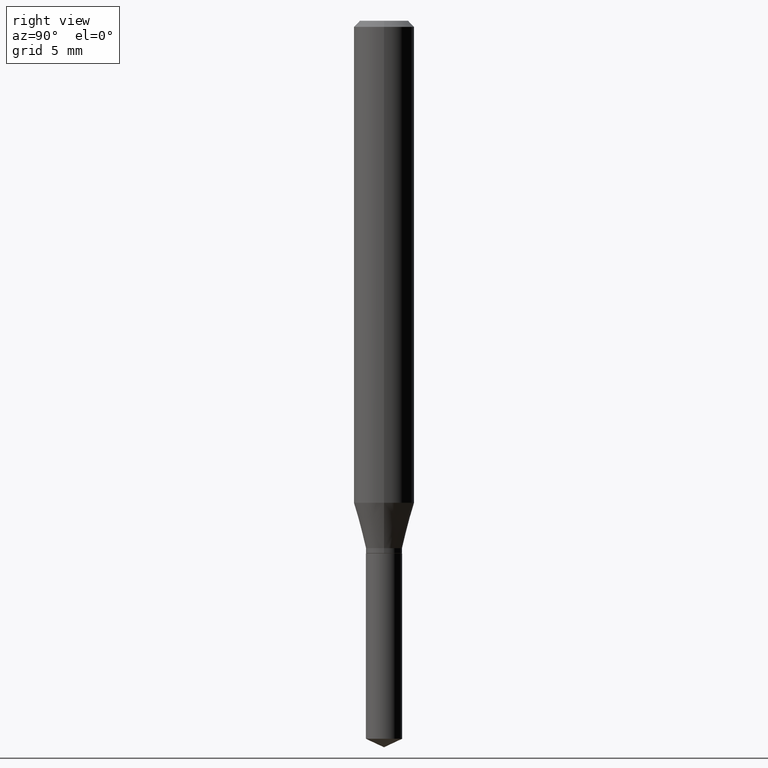
[diagram: clean part render]
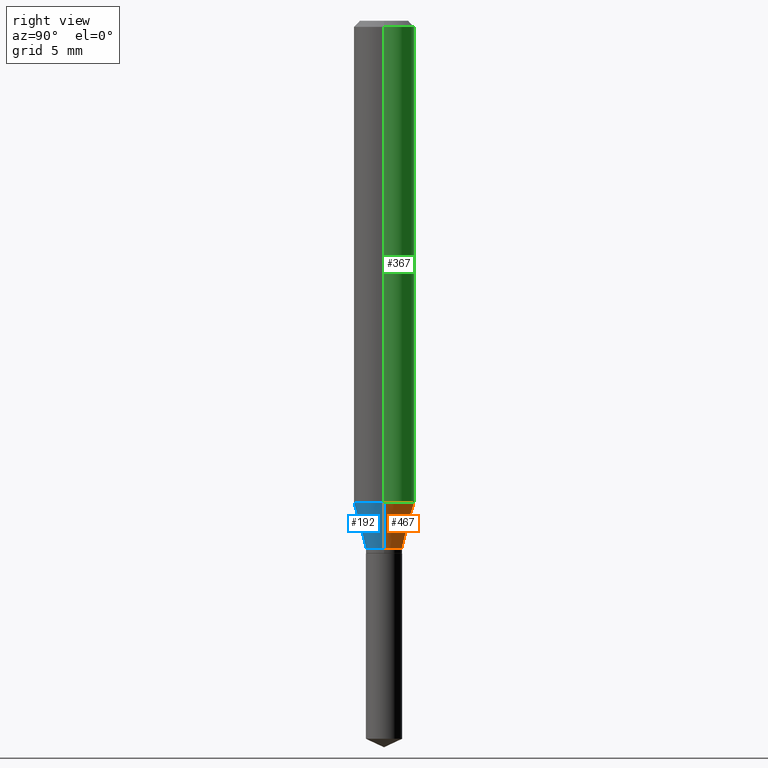
[diagram: same view with three faces highlighted in distinct colors, each labeled with its STEP entity id]
A machine part, right view with three faces highlighted in distinct colors.
Their STEP definitions:

[orange] entity #467 — the highlighted conical surface has half-angle 15 deg.
#12 = EDGE_CURVE ( 'NONE', #60, #82, #479, .T. ) ;
#14 = DIRECTION ( 'NONE',  ( 1.000000000000000000, -6.982962677686264344E-15, 0.000000000000000000 ) ) ;
#32 = ORIENTED_EDGE ( 'NONE', *, *, #204, .T. ) ;
#35 = CARTESIAN_POINT ( 'NONE',  ( 0.03740000000000000269, -4.062687685877884033E-15, -1.088800000000000212 ) ) ;
#40 = ORIENTED_EDGE ( 'NONE', *, *, #12, .F. ) ;
#42 = DIRECTION ( 'NONE',  ( -2.445468806185136597E-29, 3.491481338843145583E-15, 1.000000000000000000 ) ) ;
#54 = DIRECTION ( 'NONE',  ( -2.445468806185136597E-29, 3.491481338843145583E-15, 1.000000000000000000 ) ) ;
#59 = AXIS2_PLACEMENT_3D ( 'NONE', #279, #54, #14 ) ;
#60 = VERTEX_POINT ( 'NONE', #120 ) ;
#68 = ORIENTED_EDGE ( 'NONE', *, *, #319, .T. ) ;
#82 = VERTEX_POINT ( 'NONE', #396 ) ;
#120 = CARTESIAN_POINT ( 'NONE',  ( 0.06250000000000012490, -3.910897366756753978E-15, -0.9951255247300211382 ) ) ;
#122 = AXIS2_PLACEMENT_3D ( 'NONE', #345, #490, #149 ) ;
#143 = AXIS2_PLACEMENT_3D ( 'NONE', #354, #42, #157 ) ;
#147 = FACE_OUTER_BOUND ( 'NONE', #377, .T. ) ;
#149 = DIRECTION ( 'NONE',  ( 1.000000000000000000, -6.982962677686261977E-15, 0.000000000000000000 ) ) ;
#157 = DIRECTION ( 'NONE',  ( 1.000000000000000000, -6.982962677686261977E-15, 0.000000000000000000 ) ) ;
#166 = VERTEX_POINT ( 'NONE', #372 ) ;
#171 = CARTESIAN_POINT ( 'NONE',  ( -0.03740000000000000269, -3.535781898558140243E-15, -1.088800000000000212 ) ) ;
#177 = DIRECTION ( 'NONE',  ( 0.2588190451025213501, 1.565188264969621968E-15, 0.9659258262890682012 ) ) ;
#178 = CONICAL_SURFACE ( 'NONE', #143, 0.03740000000000000269, 0.2617993877991500740 ) ;
#204 = EDGE_CURVE ( 'NONE', #331, #82, #369, .T. ) ;
#246 = CARTESIAN_POINT ( 'NONE',  ( -0.03740000000000000269, -3.554461323720950725E-15, -1.088800000000000212 ) ) ;
#279 = CARTESIAN_POINT ( 'NONE',  ( 2.433548428965882427E-29, -3.474462199401361914E-15, -0.9951255247300211382 ) ) ;
#312 = EDGE_CURVE ( 'NONE', #166, #60, #488, .T. ) ;
#319 = EDGE_CURVE ( 'NONE', #166, #331, #392, .T. ) ;
#331 = VERTEX_POINT ( 'NONE', #246 ) ;
#345 = CARTESIAN_POINT ( 'NONE',  ( 2.662626436174376772E-29, -3.801524881732417633E-15, -1.088800000000000212 ) ) ;
#354 = CARTESIAN_POINT ( 'NONE',  ( 2.662626436174376772E-29, -3.801524881732417633E-15, -1.088800000000000212 ) ) ;
#359 = VECTOR ( 'NONE', #380, 39.37007874015747433 ) ;
#369 = LINE ( 'NONE', #171, #359 ) ;
#372 = CARTESIAN_POINT ( 'NONE',  ( 0.03740000000000000269, -4.062687685877884033E-15, -1.088800000000000212 ) ) ;
#377 = EDGE_LOOP ( 'NONE', ( #68, #32, #40, #379 ) ) ;
#379 = ORIENTED_EDGE ( 'NONE', *, *, #312, .F. ) ;
#380 = DIRECTION ( 'NONE',  ( -0.2588190451025213501, 5.211531920934551042E-15, 0.9659258262890682012 ) ) ;
#392 = CIRCLE ( 'NONE', #122, 0.03740000000000000269 ) ;
#396 = CARTESIAN_POINT ( 'NONE',  ( -0.06250000000000012490, -3.030372989551298509E-15, -0.9951255247300211382 ) ) ;
#416 = VECTOR ( 'NONE', #177, 39.37007874015747433 ) ;
#467 = ADVANCED_FACE ( 'NONE', ( #147 ), #178, .T. ) ;
#479 = CIRCLE ( 'NONE', #59, 0.06250000000000012490 ) ;
#488 = LINE ( 'NONE', #35, #416 ) ;
#490 = DIRECTION ( 'NONE',  ( -2.445468806185136597E-29, 3.491481338843145583E-15, 1.000000000000000000 ) ) ;

[blue] entity #192 — the highlighted conical surface has half-angle 15 deg.
#31 = FACE_OUTER_BOUND ( 'NONE', #215, .T. ) ;
#35 = CARTESIAN_POINT ( 'NONE',  ( 0.03740000000000000269, -4.062687685877884033E-15, -1.088800000000000212 ) ) ;
#60 = VERTEX_POINT ( 'NONE', #120 ) ;
#82 = VERTEX_POINT ( 'NONE', #396 ) ;
#100 = DIRECTION ( 'NONE',  ( -2.445468806185136597E-29, 3.491481338843145583E-15, 1.000000000000000000 ) ) ;
#109 = CARTESIAN_POINT ( 'NONE',  ( 2.662626436174376772E-29, -3.801524881732417633E-15, -1.088800000000000212 ) ) ;
#117 = CARTESIAN_POINT ( 'NONE',  ( 2.662626436174376772E-29, -3.801524881732417633E-15, -1.088800000000000212 ) ) ;
#120 = CARTESIAN_POINT ( 'NONE',  ( 0.06250000000000012490, -3.910897366756753978E-15, -0.9951255247300211382 ) ) ;
#146 = EDGE_CURVE ( 'NONE', #82, #60, #321, .T. ) ;
#166 = VERTEX_POINT ( 'NONE', #372 ) ;
#171 = CARTESIAN_POINT ( 'NONE',  ( -0.03740000000000000269, -3.535781898558140243E-15, -1.088800000000000212 ) ) ;
#177 = DIRECTION ( 'NONE',  ( 0.2588190451025213501, 1.565188264969621968E-15, 0.9659258262890682012 ) ) ;
#192 = ADVANCED_FACE ( 'NONE', ( #31 ), #409, .T. ) ;
#204 = EDGE_CURVE ( 'NONE', #331, #82, #369, .T. ) ;
#206 = ORIENTED_EDGE ( 'NONE', *, *, #312, .T. ) ;
#215 = EDGE_LOOP ( 'NONE', ( #370, #338, #206, #375 ) ) ;
#218 = DIRECTION ( 'NONE',  ( -2.445468806185136597E-29, 3.491481338843145583E-15, 1.000000000000000000 ) ) ;
#246 = CARTESIAN_POINT ( 'NONE',  ( -0.03740000000000000269, -3.554461323720950725E-15, -1.088800000000000212 ) ) ;
#264 = DIRECTION ( 'NONE',  ( 1.000000000000000000, -6.982962677686261977E-15, 0.000000000000000000 ) ) ;
#276 = DIRECTION ( 'NONE',  ( -2.445468806185136597E-29, 3.491481338843145583E-15, 1.000000000000000000 ) ) ;
#283 = EDGE_CURVE ( 'NONE', #331, #166, #435, .T. ) ;
#296 = AXIS2_PLACEMENT_3D ( 'NONE', #109, #100, #264 ) ;
#312 = EDGE_CURVE ( 'NONE', #166, #60, #488, .T. ) ;
#321 = CIRCLE ( 'NONE', #451, 0.06250000000000012490 ) ;
#331 = VERTEX_POINT ( 'NONE', #246 ) ;
#338 = ORIENTED_EDGE ( 'NONE', *, *, #283, .T. ) ;
#359 = VECTOR ( 'NONE', #380, 39.37007874015747433 ) ;
#369 = LINE ( 'NONE', #171, #359 ) ;
#370 = ORIENTED_EDGE ( 'NONE', *, *, #204, .F. ) ;
#372 = CARTESIAN_POINT ( 'NONE',  ( 0.03740000000000000269, -4.062687685877884033E-15, -1.088800000000000212 ) ) ;
#375 = ORIENTED_EDGE ( 'NONE', *, *, #146, .F. ) ;
#376 = DIRECTION ( 'NONE',  ( 1.000000000000000000, -6.982962677686264344E-15, 0.000000000000000000 ) ) ;
#380 = DIRECTION ( 'NONE',  ( -0.2588190451025213501, 5.211531920934551042E-15, 0.9659258262890682012 ) ) ;
#384 = AXIS2_PLACEMENT_3D ( 'NONE', #117, #276, #425 ) ;
#396 = CARTESIAN_POINT ( 'NONE',  ( -0.06250000000000012490, -3.030372989551298509E-15, -0.9951255247300211382 ) ) ;
#409 = CONICAL_SURFACE ( 'NONE', #296, 0.03740000000000000269, 0.2617993877991500740 ) ;
#416 = VECTOR ( 'NONE', #177, 39.37007874015747433 ) ;
#425 = DIRECTION ( 'NONE',  ( 1.000000000000000000, -6.982962677686261977E-15, 0.000000000000000000 ) ) ;
#435 = CIRCLE ( 'NONE', #384, 0.03740000000000000269 ) ;
#451 = AXIS2_PLACEMENT_3D ( 'NONE', #486, #218, #376 ) ;
#486 = CARTESIAN_POINT ( 'NONE',  ( 2.433548428965882427E-29, -3.474462199401361914E-15, -0.9951255247300211382 ) ) ;
#488 = LINE ( 'NONE', #35, #416 ) ;

[green] entity #367 — the highlighted cylindrical surface (edge-blend (fillet) strip) has radius 1.5875 mm, axis along (-0, 0, 1).
#11 = CARTESIAN_POINT ( 'NONE',  ( 0.06250000000000005551, -4.364351673553921131E-16, 3.047610484872463023E-30 ) ) ;
#12 = EDGE_CURVE ( 'NONE', #60, #82, #479, .T. ) ;
#14 = DIRECTION ( 'NONE',  ( 1.000000000000000000, -6.982962677686264344E-15, 0.000000000000000000 ) ) ;
#44 = CARTESIAN_POINT ( 'NONE',  ( -0.06250000000000005551, 4.440892098500630106E-16, -3.074334431409318916E-30 ) ) ;
#45 = LINE ( 'NONE', #11, #400 ) ;
#48 = DIRECTION ( 'NONE',  ( 1.000000000000000000, -6.982962677686266711E-15, 0.000000000000000000 ) ) ;
#54 = DIRECTION ( 'NONE',  ( -2.445468806185136597E-29, 3.491481338843145583E-15, 1.000000000000000000 ) ) ;
#59 = AXIS2_PLACEMENT_3D ( 'NONE', #279, #54, #14 ) ;
#60 = VERTEX_POINT ( 'NONE', #120 ) ;
#65 = EDGE_CURVE ( 'NONE', #333, #404, #344, .T. ) ;
#82 = VERTEX_POINT ( 'NONE', #396 ) ;
#83 = CYLINDRICAL_SURFACE ( 'NONE', #418, 0.06250000000000005551 ) ;
#90 = CARTESIAN_POINT ( 'NONE',  ( -0.06250000000000000000, -1.314963648218386938E-15, -0.01250000000000008223 ) ) ;
#93 = FACE_OUTER_BOUND ( 'NONE', #412, .T. ) ;
#115 = DIRECTION ( 'NONE',  ( 1.000000000000000000, -6.982962677686267499E-15, 4.876176775795936353E-29 ) ) ;
#120 = CARTESIAN_POINT ( 'NONE',  ( 0.06250000000000012490, -3.910897366756753978E-15, -0.9951255247300211382 ) ) ;
#121 = DIRECTION ( 'NONE',  ( -2.445468806185136597E-29, 3.491481338843145583E-15, 1.000000000000000000 ) ) ;
#137 = VECTOR ( 'NONE', #187, 39.37007874015748143 ) ;
#148 = LINE ( 'NONE', #44, #137 ) ;
#154 = CARTESIAN_POINT ( 'NONE',  ( 0.06250000000000000000, -4.800786840909312308E-16, -0.01250000000000008223 ) ) ;
#183 = ORIENTED_EDGE ( 'NONE', *, *, #65, .F. ) ;
#187 = DIRECTION ( 'NONE',  ( -2.445468806185136877E-29, 3.491481338843145188E-15, 1.000000000000000000 ) ) ;
#230 = ORIENTED_EDGE ( 'NONE', *, *, #265, .T. ) ;
#238 = CARTESIAN_POINT ( 'NONE',  ( 3.056836007731440977E-31, -4.364351673553961068E-17, -0.01250000000000008223 ) ) ;
#244 = CARTESIAN_POINT ( 'NONE',  ( 0.000000000000000000, 0.000000000000000000, 0.000000000000000000 ) ) ;
#265 = EDGE_CURVE ( 'NONE', #82, #404, #148, .T. ) ;
#279 = CARTESIAN_POINT ( 'NONE',  ( 2.433548428965882427E-29, -3.474462199401361914E-15, -0.9951255247300211382 ) ) ;
#295 = AXIS2_PLACEMENT_3D ( 'NONE', #238, #430, #48 ) ;
#333 = VERTEX_POINT ( 'NONE', #154 ) ;
#344 = CIRCLE ( 'NONE', #295, 0.06250000000000000000 ) ;
#346 = DIRECTION ( 'NONE',  ( -2.445468806185136877E-29, 3.491481338843145188E-15, 1.000000000000000000 ) ) ;
#367 = ADVANCED_FACE ( 'NONE', ( #93 ), #83, .T. ) ;
#383 = ORIENTED_EDGE ( 'NONE', *, *, #461, .F. ) ;
#396 = CARTESIAN_POINT ( 'NONE',  ( -0.06250000000000012490, -3.030372989551298509E-15, -0.9951255247300211382 ) ) ;
#400 = VECTOR ( 'NONE', #346, 39.37007874015748143 ) ;
#404 = VERTEX_POINT ( 'NONE', #90 ) ;
#412 = EDGE_LOOP ( 'NONE', ( #477, #230, #183, #383 ) ) ;
#418 = AXIS2_PLACEMENT_3D ( 'NONE', #244, #121, #115 ) ;
#430 = DIRECTION ( 'NONE',  ( -2.445468806185136597E-29, 3.491481338843145583E-15, 1.000000000000000000 ) ) ;
#461 = EDGE_CURVE ( 'NONE', #60, #333, #45, .T. ) ;
#477 = ORIENTED_EDGE ( 'NONE', *, *, #12, .T. ) ;
#479 = CIRCLE ( 'NONE', #59, 0.06250000000000012490 ) ;